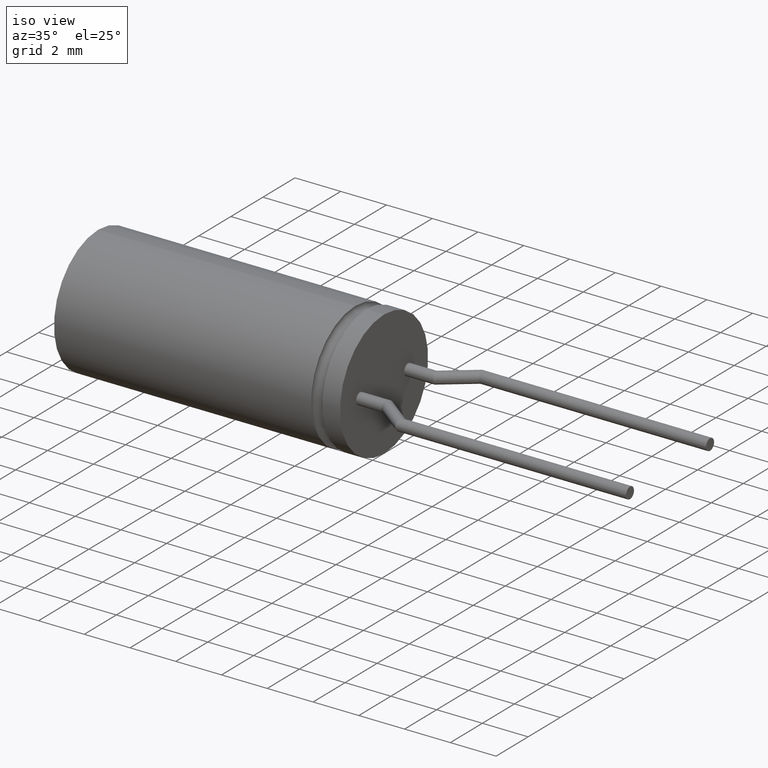
[diagram: clean part render]
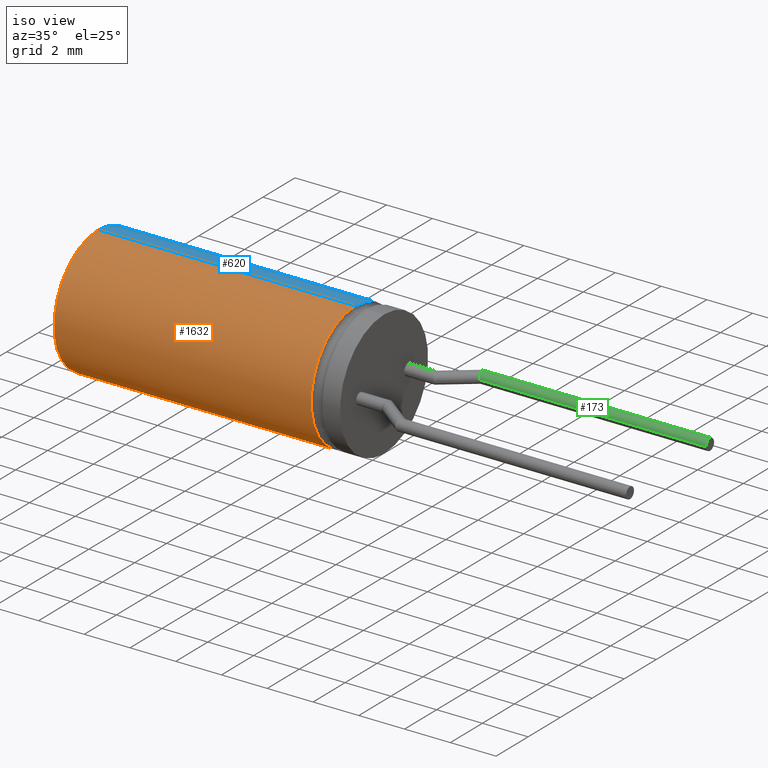
[diagram: same view with three faces highlighted in distinct colors, each labeled with its STEP entity id]
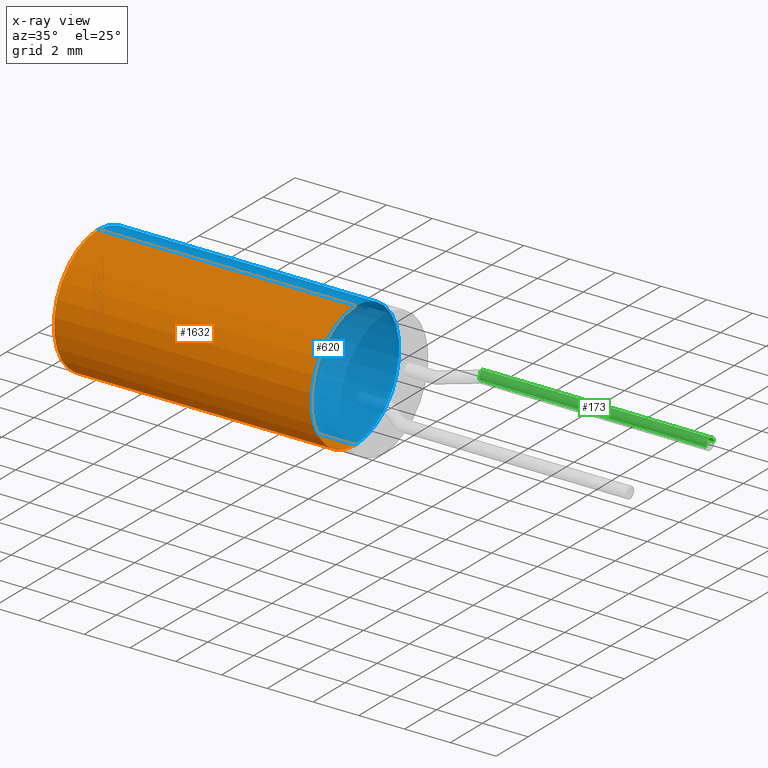
[diagram: x-ray of the same camera — body ghosted, the three highlighted faces saturated]
A machine part, iso view with three faces highlighted in distinct colors.
The next image is the same camera in x-ray (body ghosted, the three faces saturated) — at least one of them is partly hidden behind the body in this view.
Their STEP definitions:

[orange] entity #1632 — the highlighted cylindrical surface (partial cylindrical patch) has radius 2.75 mm, axis along (-1, -0, -0).
#135 = CARTESIAN_POINT ( 'NONE',  ( 0.0000000000000000000, 0.0000000000000000000, 2.750000000000000000 ) ) ;
#206 = DIRECTION ( 'NONE',  ( 0.0000000000000000000, 0.0000000000000000000, 1.000000000000000000 ) ) ;
#269 = ORIENTED_EDGE ( 'NONE', *, *, #1138, .F. ) ;
#270 = CIRCLE ( 'NONE', #2986, 2.750000000000000000 ) ;
#296 = ORIENTED_EDGE ( 'NONE', *, *, #2245, .T. ) ;
#311 = VECTOR ( 'NONE', #2166, 1000.000000000000000 ) ;
#397 = CIRCLE ( 'NONE', #1958, 2.750000000000000000 ) ;
#494 = ORIENTED_EDGE ( 'NONE', *, *, #3023, .T. ) ;
#830 = VERTEX_POINT ( 'NONE', #1174 ) ;
#1035 = VERTEX_POINT ( 'NONE', #135 ) ;
#1138 = EDGE_CURVE ( 'NONE', #2073, #830, #3217, .T. ) ;
#1174 = CARTESIAN_POINT ( 'NONE',  ( 0.0000000000000000000, 3.367778697655221000E-016, -2.750000000000000000 ) ) ;
#1307 = VECTOR ( 'NONE', #2287, 1000.000000000000000 ) ;
#1572 = LINE ( 'NONE', #3401, #1307 ) ;
#1632 = ADVANCED_FACE ( 'NONE', ( #2535 ), #3203, .T. ) ;
#1644 = EDGE_CURVE ( 'NONE', #3077, #2073, #270, .T. ) ;
#1676 = ORIENTED_EDGE ( 'NONE', *, *, #1644, .F. ) ;
#1699 = DIRECTION ( 'NONE',  ( 0.0000000000000000000, 0.0000000000000000000, -1.000000000000000000 ) ) ;
#1891 = DIRECTION ( 'NONE',  ( -1.000000000000000000, -0.0000000000000000000, -0.0000000000000000000 ) ) ;
#1936 = EDGE_LOOP ( 'NONE', ( #269, #1676, #494, #296 ) ) ;
#1958 = AXIS2_PLACEMENT_3D ( 'NONE', #3666, #3119, #1699 ) ;
#2073 = VERTEX_POINT ( 'NONE', #3589 ) ;
#2166 = DIRECTION ( 'NONE',  ( -1.000000000000000000, -0.0000000000000000000, -0.0000000000000000000 ) ) ;
#2245 = EDGE_CURVE ( 'NONE', #1035, #830, #397, .T. ) ;
#2287 = DIRECTION ( 'NONE',  ( -1.000000000000000000, -0.0000000000000000000, -0.0000000000000000000 ) ) ;
#2535 = FACE_OUTER_BOUND ( 'NONE', #1936, .T. ) ;
#2986 = AXIS2_PLACEMENT_3D ( 'NONE', #3073, #3352, #3593 ) ;
#3023 = EDGE_CURVE ( 'NONE', #3077, #1035, #1572, .T. ) ;
#3073 = CARTESIAN_POINT ( 'NONE',  ( 11.23995000000000000, 0.0000000000000000000, 0.0000000000000000000 ) ) ;
#3077 = VERTEX_POINT ( 'NONE', #3118 ) ;
#3118 = CARTESIAN_POINT ( 'NONE',  ( 11.23995000000000000, 3.367778697655218500E-016, 2.749999999999997300 ) ) ;
#3119 = DIRECTION ( 'NONE',  ( 1.000000000000000000, 0.0000000000000000000, 0.0000000000000000000 ) ) ;
#3158 = AXIS2_PLACEMENT_3D ( 'NONE', #3603, #1891, #206 ) ;
#3203 = CYLINDRICAL_SURFACE ( 'NONE', #3158, 2.750000000000000000 ) ;
#3217 = LINE ( 'NONE', #3592, #311 ) ;
#3352 = DIRECTION ( 'NONE',  ( 1.000000000000000000, -0.0000000000000000000, -0.0000000000000000000 ) ) ;
#3401 = CARTESIAN_POINT ( 'NONE',  ( 12.50000000000000000, 0.0000000000000000000, 2.750000000000000000 ) ) ;
#3589 = CARTESIAN_POINT ( 'NONE',  ( 11.23995000000000000, 0.0000000000000000000, -2.749999999999997300 ) ) ;
#3592 = CARTESIAN_POINT ( 'NONE',  ( 12.50000000000000000, 3.367778697655221000E-016, -2.750000000000000000 ) ) ;
#3593 = DIRECTION ( 'NONE',  ( 0.0000000000000000000, 0.0000000000000000000, -1.000000000000000000 ) ) ;
#3603 = CARTESIAN_POINT ( 'NONE',  ( 12.50000000000000000, 0.0000000000000000000, 0.0000000000000000000 ) ) ;
#3666 = CARTESIAN_POINT ( 'NONE',  ( 0.0000000000000000000, 0.0000000000000000000, 0.0000000000000000000 ) ) ;

[blue] entity #620 — the highlighted cylindrical surface (partial cylindrical patch) has radius 2.75 mm, axis along (-1, -0, -0).
#33 = EDGE_CURVE ( 'NONE', #2073, #3077, #2169, .T. ) ;
#135 = CARTESIAN_POINT ( 'NONE',  ( 0.0000000000000000000, 0.0000000000000000000, 2.750000000000000000 ) ) ;
#311 = VECTOR ( 'NONE', #2166, 1000.000000000000000 ) ;
#477 = FACE_OUTER_BOUND ( 'NONE', #2721, .T. ) ;
#620 = ADVANCED_FACE ( 'NONE', ( #477 ), #1542, .T. ) ;
#673 = EDGE_CURVE ( 'NONE', #830, #1035, #2781, .T. ) ;
#728 = CARTESIAN_POINT ( 'NONE',  ( 12.50000000000000000, 0.0000000000000000000, 0.0000000000000000000 ) ) ;
#830 = VERTEX_POINT ( 'NONE', #1174 ) ;
#841 = AXIS2_PLACEMENT_3D ( 'NONE', #3442, #2599, #3137 ) ;
#1035 = VERTEX_POINT ( 'NONE', #135 ) ;
#1138 = EDGE_CURVE ( 'NONE', #2073, #830, #3217, .T. ) ;
#1174 = CARTESIAN_POINT ( 'NONE',  ( 0.0000000000000000000, 3.367778697655221000E-016, -2.750000000000000000 ) ) ;
#1220 = AXIS2_PLACEMENT_3D ( 'NONE', #1630, #3321, #2177 ) ;
#1307 = VECTOR ( 'NONE', #2287, 1000.000000000000000 ) ;
#1542 = CYLINDRICAL_SURFACE ( 'NONE', #1705, 2.750000000000000000 ) ;
#1572 = LINE ( 'NONE', #3401, #1307 ) ;
#1580 = DIRECTION ( 'NONE',  ( 0.0000000000000000000, 0.0000000000000000000, 1.000000000000000000 ) ) ;
#1630 = CARTESIAN_POINT ( 'NONE',  ( 0.0000000000000000000, 0.0000000000000000000, 0.0000000000000000000 ) ) ;
#1705 = AXIS2_PLACEMENT_3D ( 'NONE', #728, #2998, #1580 ) ;
#1937 = ORIENTED_EDGE ( 'NONE', *, *, #33, .F. ) ;
#2073 = VERTEX_POINT ( 'NONE', #3589 ) ;
#2166 = DIRECTION ( 'NONE',  ( -1.000000000000000000, -0.0000000000000000000, -0.0000000000000000000 ) ) ;
#2169 = CIRCLE ( 'NONE', #841, 2.750000000000000000 ) ;
#2177 = DIRECTION ( 'NONE',  ( 0.0000000000000000000, 0.0000000000000000000, -1.000000000000000000 ) ) ;
#2287 = DIRECTION ( 'NONE',  ( -1.000000000000000000, -0.0000000000000000000, -0.0000000000000000000 ) ) ;
#2599 = DIRECTION ( 'NONE',  ( 1.000000000000000000, -0.0000000000000000000, -0.0000000000000000000 ) ) ;
#2721 = EDGE_LOOP ( 'NONE', ( #1937, #2978, #3491, #3399 ) ) ;
#2781 = CIRCLE ( 'NONE', #1220, 2.750000000000000000 ) ;
#2978 = ORIENTED_EDGE ( 'NONE', *, *, #1138, .T. ) ;
#2998 = DIRECTION ( 'NONE',  ( -1.000000000000000000, -0.0000000000000000000, -0.0000000000000000000 ) ) ;
#3023 = EDGE_CURVE ( 'NONE', #3077, #1035, #1572, .T. ) ;
#3077 = VERTEX_POINT ( 'NONE', #3118 ) ;
#3118 = CARTESIAN_POINT ( 'NONE',  ( 11.23995000000000000, 3.367778697655218500E-016, 2.749999999999997300 ) ) ;
#3137 = DIRECTION ( 'NONE',  ( 0.0000000000000000000, 0.0000000000000000000, -1.000000000000000000 ) ) ;
#3217 = LINE ( 'NONE', #3592, #311 ) ;
#3321 = DIRECTION ( 'NONE',  ( 1.000000000000000000, 0.0000000000000000000, 0.0000000000000000000 ) ) ;
#3399 = ORIENTED_EDGE ( 'NONE', *, *, #3023, .F. ) ;
#3401 = CARTESIAN_POINT ( 'NONE',  ( 12.50000000000000000, 0.0000000000000000000, 2.750000000000000000 ) ) ;
#3442 = CARTESIAN_POINT ( 'NONE',  ( 11.23995000000000000, 0.0000000000000000000, 0.0000000000000000000 ) ) ;
#3491 = ORIENTED_EDGE ( 'NONE', *, *, #673, .T. ) ;
#3589 = CARTESIAN_POINT ( 'NONE',  ( 11.23995000000000000, 0.0000000000000000000, -2.749999999999997300 ) ) ;
#3592 = CARTESIAN_POINT ( 'NONE',  ( 12.50000000000000000, 3.367778697655221000E-016, -2.750000000000000000 ) ) ;

[green] entity #173 — the highlighted cylindrical surface (edge-blend (fillet) strip) has radius 0.25 mm, axis along (1, 0, 0).
#24 = CYLINDRICAL_SURFACE ( 'NONE', #317, 0.2500000000000002200 ) ;
#173 = ADVANCED_FACE ( 'NONE', ( #524 ), #24, .T. ) ;
#185 = DIRECTION ( 'NONE',  ( 0.0000000000000000000, 1.000000000000000000, 0.0000000000000000000 ) ) ;
#250 = CARTESIAN_POINT ( 'NONE',  ( 25.00000000000000000, 2.250000000000001300, 3.061616997868379300E-017 ) ) ;
#317 = AXIS2_PLACEMENT_3D ( 'NONE', #676, #3220, #185 ) ;
#429 = AXIS2_PLACEMENT_3D ( 'NONE', #3551, #3262, #1566 ) ;
#515 = ORIENTED_EDGE ( 'NONE', *, *, #3059, .T. ) ;
#524 = FACE_OUTER_BOUND ( 'NONE', #1687, .T. ) ;
#536 = CARTESIAN_POINT ( 'NONE',  ( 15.08503048667142100, 2.250000000000000000, 0.5000000000000000000 ) ) ;
#607 = DIRECTION ( 'NONE',  ( 1.000000000000000000, 8.673617379884036700E-017, 0.0000000000000000000 ) ) ;
#676 = CARTESIAN_POINT ( 'NONE',  ( 15.00000000000000400, 2.500000000000000400, 0.0000000000000000000 ) ) ;
#750 = CARTESIAN_POINT ( 'NONE',  ( 14.91496951332858400, 2.750000000000000900, 0.0000000000000000000 ) ) ;
#1092 = CARTESIAN_POINT ( 'NONE',  ( 15.00000000000000400, 2.250000000000000400, 3.061616997868382400E-017 ) ) ;
#1110 = CARTESIAN_POINT ( 'NONE',  ( 14.91496951332858400, 2.750000000000000900, 0.0000000000000000000 ) ) ;
#1163 = EDGE_CURVE ( 'NONE', #1618, #3317, #3267, .T. ) ;
#1290 = CARTESIAN_POINT ( 'NONE',  ( 25.00000000000000000, 2.750000000000001800, 0.0000000000000000000 ) ) ;
#1322 = VECTOR ( 'NONE', #2436, 1000.000000000000000 ) ;
#1391 = LINE ( 'NONE', #1092, #3099 ) ;
#1497 = CIRCLE ( 'NONE', #429, 0.2500000000000002200 ) ;
#1550 =( BOUNDED_CURVE ( )  B_SPLINE_CURVE ( 3, ( #1926, #536, #2812, #1110 ),
 .UNSPECIFIED., .F., .F. ) 
 B_SPLINE_CURVE_WITH_KNOTS ( ( 4, 4 ),
 ( 3.141592653589793100, 6.283185307179586200 ),
 .UNSPECIFIED. ) 
 CURVE ( )  GEOMETRIC_REPRESENTATION_ITEM ( )  RATIONAL_B_SPLINE_CURVE ( ( 1.000000000000000000, 0.3333333333333333700, 0.3333333333333333700, 1.000000000000000000 ) ) 
 REPRESENTATION_ITEM ( '' )  );
#1566 = DIRECTION ( 'NONE',  ( 0.0000000000000000000, 1.000000000000000000, 0.0000000000000000000 ) ) ;
#1618 = VERTEX_POINT ( 'NONE', #750 ) ;
#1687 = EDGE_LOOP ( 'NONE', ( #3288, #515, #2299, #2443 ) ) ;
#1926 = CARTESIAN_POINT ( 'NONE',  ( 15.08503048667142100, 2.250000000000000400, 3.061616997868382400E-017 ) ) ;
#2151 = CARTESIAN_POINT ( 'NONE',  ( 15.00000000000000400, 2.750000000000000900, 0.0000000000000000000 ) ) ;
#2299 = ORIENTED_EDGE ( 'NONE', *, *, #2625, .F. ) ;
#2436 = DIRECTION ( 'NONE',  ( 1.000000000000000000, 8.673617379884036700E-017, 0.0000000000000000000 ) ) ;
#2443 = ORIENTED_EDGE ( 'NONE', *, *, #1163, .F. ) ;
#2505 = CARTESIAN_POINT ( 'NONE',  ( 15.08503048667142100, 2.250000000000000400, 3.061616997868382400E-017 ) ) ;
#2625 = EDGE_CURVE ( 'NONE', #3317, #2960, #1497, .T. ) ;
#2812 = CARTESIAN_POINT ( 'NONE',  ( 14.91496951332858400, 2.750000000000000900, 0.5000000000000000000 ) ) ;
#2927 = VERTEX_POINT ( 'NONE', #2505 ) ;
#2960 = VERTEX_POINT ( 'NONE', #250 ) ;
#2975 = EDGE_CURVE ( 'NONE', #2927, #1618, #1550, .T. ) ;
#3059 = EDGE_CURVE ( 'NONE', #2927, #2960, #1391, .T. ) ;
#3099 = VECTOR ( 'NONE', #607, 1000.000000000000000 ) ;
#3220 = DIRECTION ( 'NONE',  ( 1.000000000000000000, 8.673617379884036700E-017, 0.0000000000000000000 ) ) ;
#3262 = DIRECTION ( 'NONE',  ( 1.000000000000000000, 8.673617379884035500E-017, 0.0000000000000000000 ) ) ;
#3267 = LINE ( 'NONE', #2151, #1322 ) ;
#3288 = ORIENTED_EDGE ( 'NONE', *, *, #2975, .F. ) ;
#3317 = VERTEX_POINT ( 'NONE', #1290 ) ;
#3551 = CARTESIAN_POINT ( 'NONE',  ( 25.00000000000000000, 2.500000000000001300, 0.0000000000000000000 ) ) ;